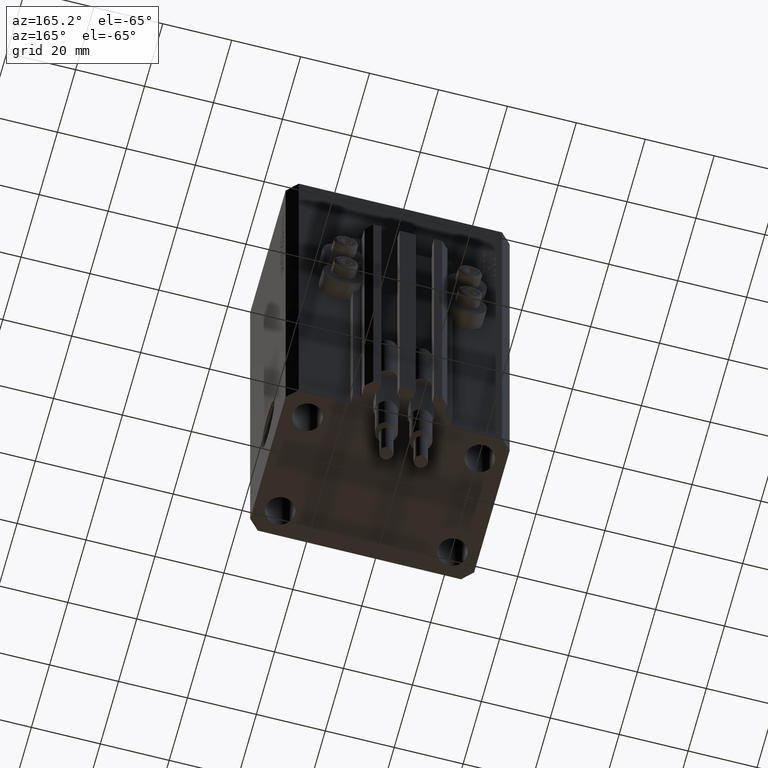
[diagram: clean part render]
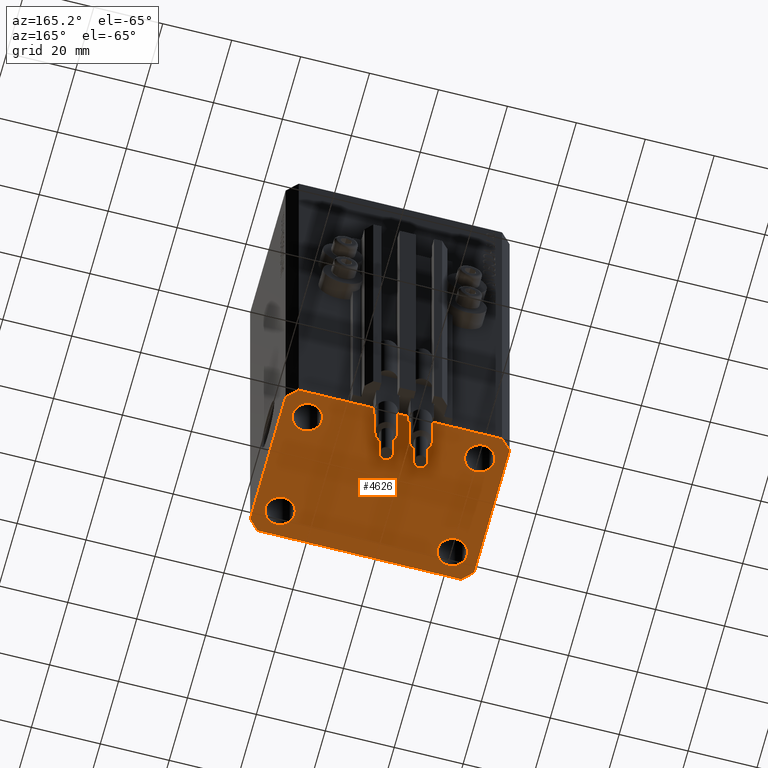
[diagram: same view with one face highlighted and labeled with its STEP entity id]
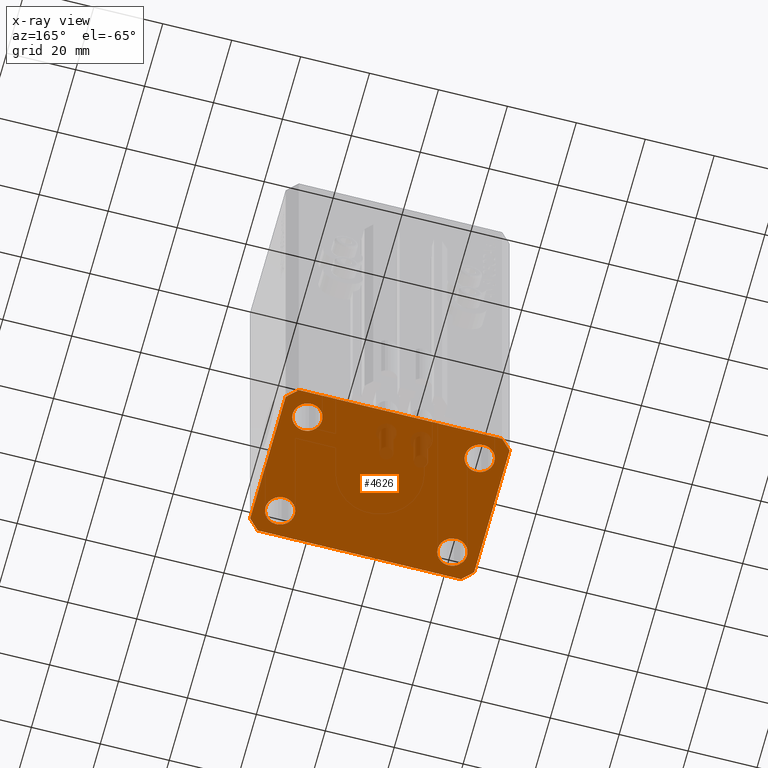
[diagram: x-ray of the same camera — body ghosted, the highlighted face saturated]
A machine part, auxiliary view. The second image highlights one B-rep face of the part: STEP entity #4626.
The next image is the same camera in x-ray: the body ghosted, the highlighted face saturated — about 4% of this face is hidden behind the body in this view.
In plain terms, the highlighted planar face has unit normal (0, 0, 1).
Its self-contained STEP definition (entity closure, byte-faithful):
#370 = AXIS2_PLACEMENT_3D ( 'NONE', #25796, #39874, #40597 ) ;
#850 = CARTESIAN_POINT ( 'NONE',  ( -20.74999999995962341, -15.00000000000000355, -137.0000000000000000 ) ) ;
#1156 = CIRCLE ( 'NONE', #370, 4.249999999976314058 ) ;
#2173 = AXIS2_PLACEMENT_3D ( 'NONE', #26912, #4551, #38305 ) ;
#2816 = CARTESIAN_POINT ( 'NONE',  ( 29.49999999999707967, 22.49999999999952038, -137.0000000000000000 ) ) ;
#2910 = CARTESIAN_POINT ( 'NONE',  ( 20.75000000002367884, -15.00000000000000355, -137.0000000000000000 ) ) ;
#3021 = EDGE_CURVE ( 'NONE', #47234, #40672, #24407, .T. ) ;
#3558 = AXIS2_PLACEMENT_3D ( 'NONE', #43842, #33628, #11053 ) ;
#3676 = EDGE_CURVE ( 'NONE', #41392, #43287, #47336, .T. ) ;
#4257 = AXIS2_PLACEMENT_3D ( 'NONE', #28454, #40094, #43256 ) ;
#4533 = CIRCLE ( 'NONE', #2173, 4.250000000040370374 ) ;
#4551 = DIRECTION ( 'NONE',  ( -0.000000000000000000, -0.000000000000000000, -1.000000000000000000 ) ) ;
#4626 = ADVANCED_FACE ( 'NONE', ( #39583, #13044, #31982, #16240, #31041 ), #46082, .F. ) ;
#4814 = VECTOR ( 'NONE', #38689, 1000.000000000000114 ) ;
#5200 = DIRECTION ( 'NONE',  ( -0.000000000000000000, -0.000000000000000000, -1.000000000000000000 ) ) ;
#5447 = ORIENTED_EDGE ( 'NONE', *, *, #44373, .F. ) ;
#5477 = CARTESIAN_POINT ( 'NONE',  ( 29.24999999995729283, 14.99999999999999289, -137.0000000000000000 ) ) ;
#5656 = AXIS2_PLACEMENT_3D ( 'NONE', #11219, #26046, #34045 ) ;
#5951 = DIRECTION ( 'NONE',  ( -0.7071067811865344721, 0.7071067811865606734, 0.000000000000000000 ) ) ;
#6229 = CARTESIAN_POINT ( 'NONE',  ( -29.49999999999650413, 22.49999999999949907, -137.0000000000000000 ) ) ;
#6511 = AXIS2_PLACEMENT_3D ( 'NONE', #8934, #42666, #30794 ) ;
#6864 = CARTESIAN_POINT ( 'NONE',  ( 29.49999999999650413, -22.49999999999949196, -137.0000000000000000 ) ) ;
#7661 = VECTOR ( 'NONE', #5951, 1000.000000000000000 ) ;
#8214 = CARTESIAN_POINT ( 'NONE',  ( 29.49999999999707967, 22.49999999999952038, -137.0000000000000000 ) ) ;
#8548 = EDGE_LOOP ( 'NONE', ( #22156, #44559 ) ) ;
#8934 = CARTESIAN_POINT ( 'NONE',  ( -24.99999999999999289, -15.00000000000000355, -137.0000000000000000 ) ) ;
#9410 = CIRCLE ( 'NONE', #45879, 4.250000000021375790 ) ;
#9411 = CARTESIAN_POINT ( 'NONE',  ( 0.000000000000000000, 0.000000000000000000, -137.0000000000000000 ) ) ;
#10280 = DIRECTION ( 'NONE',  ( 0.7071067811865483499, 0.7071067811865466846, 0.000000000000000000 ) ) ;
#10443 = ORIENTED_EDGE ( 'NONE', *, *, #20521, .F. ) ;
#10834 = CARTESIAN_POINT ( 'NONE',  ( -29.25000000004036593, -15.00000000000000355, -137.0000000000000000 ) ) ;
#10875 = AXIS2_PLACEMENT_3D ( 'NONE', #9411, #42441, #12818 ) ;
#11053 = DIRECTION ( 'NONE',  ( 1.000000000000000000, 0.000000000000000000, 0.000000000000000000 ) ) ;
#11219 = CARTESIAN_POINT ( 'NONE',  ( -25.00000000000000000, 14.99999999999999645, -137.0000000000000000 ) ) ;
#11286 = EDGE_LOOP ( 'NONE', ( #16971, #30540 ) ) ;
#11431 = CARTESIAN_POINT ( 'NONE',  ( -25.00000000000000000, 14.99999999999999645, -137.0000000000000000 ) ) ;
#12098 = LINE ( 'NONE', #8214, #45443 ) ;
#12283 = CARTESIAN_POINT ( 'NONE',  ( -29.25000000002137668, 14.99999999999999645, -137.0000000000000000 ) ) ;
#12818 = DIRECTION ( 'NONE',  ( 1.000000000000000000, 0.000000000000000000, -0.000000000000000000 ) ) ;
#12968 = EDGE_CURVE ( 'NONE', #24288, #41756, #9410, .T. ) ;
#13044 = FACE_BOUND ( 'NONE', #17866, .T. ) ;
#13340 = CARTESIAN_POINT ( 'NONE',  ( -29.49999999999650413, -22.49999999999949907, -137.0000000000000000 ) ) ;
#13834 = DIRECTION ( 'NONE',  ( 0.7071067811865474617, -0.7071067811865474617, 0.000000000000000000 ) ) ;
#14549 = CARTESIAN_POINT ( 'NONE',  ( 32.49999999999651124, -19.49999999999949196, -137.0000000000000000 ) ) ;
#15431 = EDGE_CURVE ( 'NONE', #41756, #24288, #42880, .T. ) ;
#16240 = FACE_BOUND ( 'NONE', #11286, .T. ) ;
#16502 = VERTEX_POINT ( 'NONE', #850 ) ;
#16971 = ORIENTED_EDGE ( 'NONE', *, *, #12968, .F. ) ;
#17866 = EDGE_LOOP ( 'NONE', ( #39382, #19918 ) ) ;
#18252 = VECTOR ( 'NONE', #30939, 1000.000000000000000 ) ;
#18288 = AXIS2_PLACEMENT_3D ( 'NONE', #45985, #5200, #20957 ) ;
#18770 = EDGE_CURVE ( 'NONE', #34666, #16502, #21246, .T. ) ;
#18876 = ORIENTED_EDGE ( 'NONE', *, *, #20364, .F. ) ;
#18988 = VECTOR ( 'NONE', #10280, 1000.000000000000000 ) ;
#19290 = CARTESIAN_POINT ( 'NONE',  ( 32.49999999999651124, -19.49999999999949196, -137.0000000000000000 ) ) ;
#19918 = ORIENTED_EDGE ( 'NONE', *, *, #22888, .F. ) ;
#19992 = EDGE_CURVE ( 'NONE', #46342, #21451, #28514, .T. ) ;
#20364 = EDGE_CURVE ( 'NONE', #43287, #46342, #46613, .T. ) ;
#20521 = EDGE_CURVE ( 'NONE', #28719, #41392, #22788, .T. ) ;
#20946 = CARTESIAN_POINT ( 'NONE',  ( -29.49999999999650413, 22.49999999999949907, -137.0000000000000000 ) ) ;
#20957 = DIRECTION ( 'NONE',  ( 1.000000000000000000, 0.000000000000000000, 0.000000000000000000 ) ) ;
#21072 = VERTEX_POINT ( 'NONE', #5477 ) ;
#21246 = CIRCLE ( 'NONE', #6511, 4.250000000040370374 ) ;
#21451 = VERTEX_POINT ( 'NONE', #14549 ) ;
#21489 = LINE ( 'NONE', #19290, #18252 ) ;
#22156 = ORIENTED_EDGE ( 'NONE', *, *, #31642, .F. ) ;
#22614 = CARTESIAN_POINT ( 'NONE',  ( -29.49999999999650413, -22.49999999999949907, -137.0000000000000000 ) ) ;
#22688 = EDGE_CURVE ( 'NONE', #21451, #47234, #21489, .T. ) ;
#22788 = LINE ( 'NONE', #37594, #23692 ) ;
#22888 = EDGE_CURVE ( 'NONE', #44668, #25525, #46888, .T. ) ;
#23010 = EDGE_CURVE ( 'NONE', #25525, #44668, #1156, .T. ) ;
#23310 = EDGE_CURVE ( 'NONE', #40672, #33687, #12098, .T. ) ;
#23692 = VECTOR ( 'NONE', #41726, 1000.000000000000000 ) ;
#23887 = LINE ( 'NONE', #20946, #4814 ) ;
#24174 = EDGE_CURVE ( 'NONE', #21072, #38373, #43028, .T. ) ;
#24288 = VERTEX_POINT ( 'NONE', #47263 ) ;
#24407 = LINE ( 'NONE', #39217, #7661 ) ;
#25525 = VERTEX_POINT ( 'NONE', #38919 ) ;
#25796 = CARTESIAN_POINT ( 'NONE',  ( 24.99999999999999289, -15.00000000000000355, -137.0000000000000000 ) ) ;
#26046 = DIRECTION ( 'NONE',  ( -0.000000000000000000, -0.000000000000000000, -1.000000000000000000 ) ) ;
#26413 = EDGE_CURVE ( 'NONE', #38373, #21072, #29141, .T. ) ;
#26912 = CARTESIAN_POINT ( 'NONE',  ( -24.99999999999999289, -15.00000000000000355, -137.0000000000000000 ) ) ;
#26968 = ORIENTED_EDGE ( 'NONE', *, *, #26413, .F. ) ;
#28454 = CARTESIAN_POINT ( 'NONE',  ( 25.00000000000000000, 14.99999999999999289, -137.0000000000000000 ) ) ;
#28514 = LINE ( 'NONE', #31678, #18988 ) ;
#28719 = VERTEX_POINT ( 'NONE', #43194 ) ;
#29141 = CIRCLE ( 'NONE', #3558, 4.249999999957291053 ) ;
#30540 = ORIENTED_EDGE ( 'NONE', *, *, #15431, .F. ) ;
#30772 = ORIENTED_EDGE ( 'NONE', *, *, #24174, .F. ) ;
#30794 = DIRECTION ( 'NONE',  ( 1.000000000000000000, 0.000000000000000000, 0.000000000000000000 ) ) ;
#30823 = CARTESIAN_POINT ( 'NONE',  ( -32.49999999999650413, -19.49999999999949907, -137.0000000000000000 ) ) ;
#30939 = DIRECTION ( 'NONE',  ( 1.334402673828349134E-14, 1.000000000000000000, 0.000000000000000000 ) ) ;
#31041 = FACE_OUTER_BOUND ( 'NONE', #33557, .T. ) ;
#31530 = CARTESIAN_POINT ( 'NONE',  ( 20.75000000004271072, 14.99999999999999289, -137.0000000000000000 ) ) ;
#31642 = EDGE_CURVE ( 'NONE', #16502, #34666, #4533, .T. ) ;
#31678 = CARTESIAN_POINT ( 'NONE',  ( 29.49999999999650413, -22.49999999999949196, -137.0000000000000000 ) ) ;
#31800 = DIRECTION ( 'NONE',  ( 1.000000000000000000, 1.176083712526788232E-16, 0.000000000000000000 ) ) ;
#31982 = FACE_BOUND ( 'NONE', #41032, .T. ) ;
#33557 = EDGE_LOOP ( 'NONE', ( #34842, #46023, #33907, #33867, #18876, #43518, #10443, #5447 ) ) ;
#33628 = DIRECTION ( 'NONE',  ( -0.000000000000000000, -0.000000000000000000, -1.000000000000000000 ) ) ;
#33687 = VERTEX_POINT ( 'NONE', #6229 ) ;
#33867 = ORIENTED_EDGE ( 'NONE', *, *, #19992, .F. ) ;
#33907 = ORIENTED_EDGE ( 'NONE', *, *, #22688, .F. ) ;
#34045 = DIRECTION ( 'NONE',  ( 1.000000000000000000, 0.000000000000000000, 0.000000000000000000 ) ) ;
#34666 = VERTEX_POINT ( 'NONE', #10834 ) ;
#34842 = ORIENTED_EDGE ( 'NONE', *, *, #23310, .F. ) ;
#36687 = DIRECTION ( 'NONE',  ( 1.000000000000000000, 0.000000000000000000, 0.000000000000000000 ) ) ;
#37117 = VECTOR ( 'NONE', #13834, 1000.000000000000114 ) ;
#37594 = CARTESIAN_POINT ( 'NONE',  ( -32.49999999999650413, 19.49999999999949907, -137.0000000000000000 ) ) ;
#37656 = DIRECTION ( 'NONE',  ( -0.000000000000000000, -0.000000000000000000, -1.000000000000000000 ) ) ;
#38305 = DIRECTION ( 'NONE',  ( 1.000000000000000000, 0.000000000000000000, 0.000000000000000000 ) ) ;
#38373 = VERTEX_POINT ( 'NONE', #31530 ) ;
#38689 = DIRECTION ( 'NONE',  ( -0.7071067811865474617, -0.7071067811865474617, 0.000000000000000000 ) ) ;
#38919 = CARTESIAN_POINT ( 'NONE',  ( 29.24999999997631051, -15.00000000000000355, -137.0000000000000000 ) ) ;
#39217 = CARTESIAN_POINT ( 'NONE',  ( 32.49999999999702993, 19.49999999999945999, -137.0000000000000000 ) ) ;
#39334 = CARTESIAN_POINT ( 'NONE',  ( -32.49999999999650413, -19.49999999999949907, -137.0000000000000000 ) ) ;
#39382 = ORIENTED_EDGE ( 'NONE', *, *, #23010, .F. ) ;
#39583 = FACE_BOUND ( 'NONE', #8548, .T. ) ;
#39874 = DIRECTION ( 'NONE',  ( -0.000000000000000000, -0.000000000000000000, -1.000000000000000000 ) ) ;
#40094 = DIRECTION ( 'NONE',  ( -0.000000000000000000, -0.000000000000000000, -1.000000000000000000 ) ) ;
#40597 = DIRECTION ( 'NONE',  ( 1.000000000000000000, 0.000000000000000000, 0.000000000000000000 ) ) ;
#40672 = VERTEX_POINT ( 'NONE', #2816 ) ;
#41032 = EDGE_LOOP ( 'NONE', ( #30772, #26968 ) ) ;
#41392 = VERTEX_POINT ( 'NONE', #30823 ) ;
#41726 = DIRECTION ( 'NONE',  ( 0.000000000000000000, -1.000000000000000000, 0.000000000000000000 ) ) ;
#41756 = VERTEX_POINT ( 'NONE', #12283 ) ;
#42441 = DIRECTION ( 'NONE',  ( 0.000000000000000000, 0.000000000000000000, 1.000000000000000000 ) ) ;
#42666 = DIRECTION ( 'NONE',  ( -0.000000000000000000, -0.000000000000000000, -1.000000000000000000 ) ) ;
#42880 = CIRCLE ( 'NONE', #5656, 4.250000000021375790 ) ;
#43028 = CIRCLE ( 'NONE', #4257, 4.249999999957291053 ) ;
#43194 = CARTESIAN_POINT ( 'NONE',  ( -32.49999999999650413, 19.49999999999949907, -137.0000000000000000 ) ) ;
#43256 = DIRECTION ( 'NONE',  ( 1.000000000000000000, 0.000000000000000000, 0.000000000000000000 ) ) ;
#43287 = VERTEX_POINT ( 'NONE', #22614 ) ;
#43518 = ORIENTED_EDGE ( 'NONE', *, *, #3676, .F. ) ;
#43835 = VECTOR ( 'NONE', #31800, 1000.000000000000000 ) ;
#43842 = CARTESIAN_POINT ( 'NONE',  ( 25.00000000000000000, 14.99999999999999289, -137.0000000000000000 ) ) ;
#44373 = EDGE_CURVE ( 'NONE', #33687, #28719, #23887, .T. ) ;
#44559 = ORIENTED_EDGE ( 'NONE', *, *, #18770, .F. ) ;
#44668 = VERTEX_POINT ( 'NONE', #2910 ) ;
#45443 = VECTOR ( 'NONE', #45603, 1000.000000000000000 ) ;
#45603 = DIRECTION ( 'NONE',  ( -1.000000000000000000, -3.528251137580330676E-16, 0.000000000000000000 ) ) ;
#45879 = AXIS2_PLACEMENT_3D ( 'NONE', #11431, #37656, #36687 ) ;
#45985 = CARTESIAN_POINT ( 'NONE',  ( 24.99999999999999289, -15.00000000000000355, -137.0000000000000000 ) ) ;
#46023 = ORIENTED_EDGE ( 'NONE', *, *, #3021, .F. ) ;
#46082 = PLANE ( 'NONE',  #10875 ) ;
#46342 = VERTEX_POINT ( 'NONE', #6864 ) ;
#46613 = LINE ( 'NONE', #13340, #43835 ) ;
#46888 = CIRCLE ( 'NONE', #18288, 4.249999999976314058 ) ;
#46949 = CARTESIAN_POINT ( 'NONE',  ( 32.49999999999702993, 19.49999999999945999, -137.0000000000000000 ) ) ;
#47234 = VERTEX_POINT ( 'NONE', #46949 ) ;
#47263 = CARTESIAN_POINT ( 'NONE',  ( -20.74999999997862687, 14.99999999999999645, -137.0000000000000000 ) ) ;
#47336 = LINE ( 'NONE', #39334, #37117 ) ;